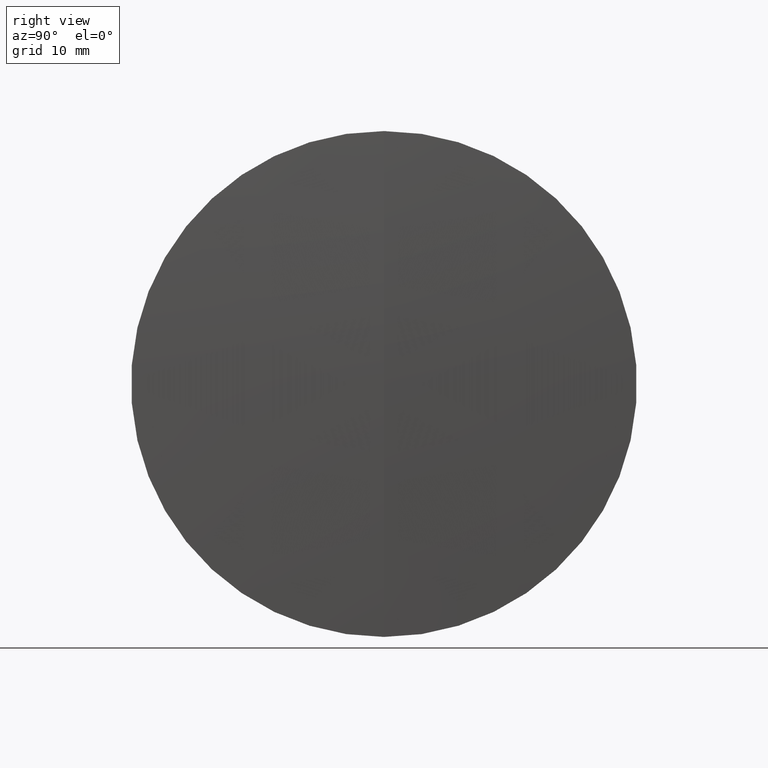
[diagram: clean part render]
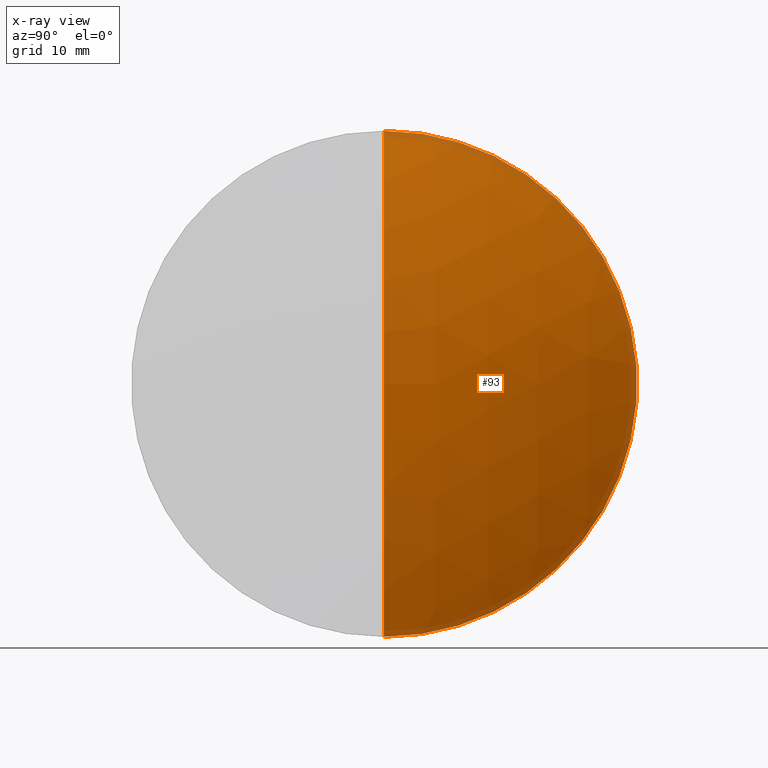
[diagram: x-ray — body ghosted, one internal face saturated and labeled with its STEP entity id]
A machine part, right view, then the same camera in x-ray: the body is ghosted and one INTERNAL B-rep face — a face not visible from any outside direction — is saturated and labeled: STEP entity #93.
In plain terms, the highlighted spherical surface has radius 75.531 mm.
Its self-contained STEP definition (entity closure, byte-faithful):
#8 = VERTEX_POINT ( 'NONE', #184 ) ;
#44 = CIRCLE ( 'NONE', #179, 75.53099999999997700 ) ;
#63 = CARTESIAN_POINT ( 'NONE',  ( 285.4402420783391700, 0.0000000000000000000, 30.00000000000000000 ) ) ;
#90 = AXIS2_PLACEMENT_3D ( 'NONE', #137, #299, #111 ) ;
#93 = ADVANCED_FACE ( 'NONE', ( #256 ), #110, .T. ) ;
#100 = ORIENTED_EDGE ( 'NONE', *, *, #301, .F. ) ;
#109 = DIRECTION ( 'NONE',  ( -0.0000000000000000000, 1.000000000000000000, 1.224646799147353200E-016 ) ) ;
#110 = SPHERICAL_SURFACE ( 'NONE', #172, 75.53099999999997700 ) ;
#111 = DIRECTION ( 'NONE',  ( 0.0000000000000000000, 0.0000000000000000000, 1.000000000000000000 ) ) ;
#137 = CARTESIAN_POINT ( 'NONE',  ( 285.4402420783391700, 0.0000000000000000000, 0.0000000000000000000 ) ) ;
#140 = DIRECTION ( 'NONE',  ( 0.0000000000000000000, -1.000000000000000000, 0.0000000000000000000 ) ) ;
#142 = CARTESIAN_POINT ( 'NONE',  ( 216.1226255512254100, 0.0000000000000000000, 0.0000000000000000000 ) ) ;
#143 = CARTESIAN_POINT ( 'NONE',  ( 285.4402420783391700, 3.673940397442059200E-015, -30.00000000000000000 ) ) ;
#148 = EDGE_LOOP ( 'NONE', ( #100, #182, #338 ) ) ;
#150 = AXIS2_PLACEMENT_3D ( 'NONE', #332, #140, #302 ) ;
#166 = DIRECTION ( 'NONE',  ( 0.0000000000000000000, 1.000000000000000000, 0.0000000000000000000 ) ) ;
#172 = AXIS2_PLACEMENT_3D ( 'NONE', #142, #166, #195 ) ;
#179 = AXIS2_PLACEMENT_3D ( 'NONE', #272, #109, #298 ) ;
#181 = CIRCLE ( 'NONE', #90, 30.00000000000000000 ) ;
#182 = ORIENTED_EDGE ( 'NONE', *, *, #229, .T. ) ;
#184 = CARTESIAN_POINT ( 'NONE',  ( 291.6536255512253900, 0.0000000000000000000, 4.624939869319935400E-015 ) ) ;
#195 = DIRECTION ( 'NONE',  ( 0.0000000000000000000, 0.0000000000000000000, 1.000000000000000000 ) ) ;
#226 = CIRCLE ( 'NONE', #150, 75.53099999999997700 ) ;
#229 = EDGE_CURVE ( 'NONE', #8, #293, #44, .T. ) ;
#256 = FACE_OUTER_BOUND ( 'NONE', #148, .T. ) ;
#272 = CARTESIAN_POINT ( 'NONE',  ( 216.1226255512254100, 0.0000000000000000000, 0.0000000000000000000 ) ) ;
#287 = VERTEX_POINT ( 'NONE', #63 ) ;
#293 = VERTEX_POINT ( 'NONE', #143 ) ;
#298 = DIRECTION ( 'NONE',  ( 0.0000000000000000000, -1.224646799147353200E-016, 1.000000000000000000 ) ) ;
#299 = DIRECTION ( 'NONE',  ( -1.000000000000000000, -0.0000000000000000000, -0.0000000000000000000 ) ) ;
#301 = EDGE_CURVE ( 'NONE', #8, #287, #226, .T. ) ;
#302 = DIRECTION ( 'NONE',  ( 0.0000000000000000000, 0.0000000000000000000, -1.000000000000000000 ) ) ;
#317 = EDGE_CURVE ( 'NONE', #287, #293, #181, .T. ) ;
#332 = CARTESIAN_POINT ( 'NONE',  ( 216.1226255512254100, 0.0000000000000000000, 0.0000000000000000000 ) ) ;
#338 = ORIENTED_EDGE ( 'NONE', *, *, #317, .F. ) ;